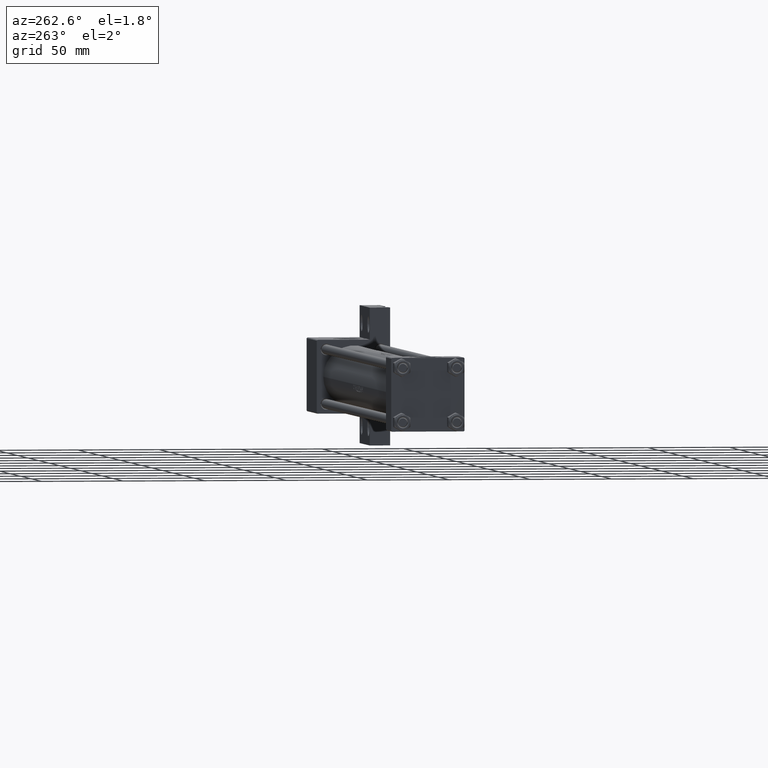
[diagram: clean part render]
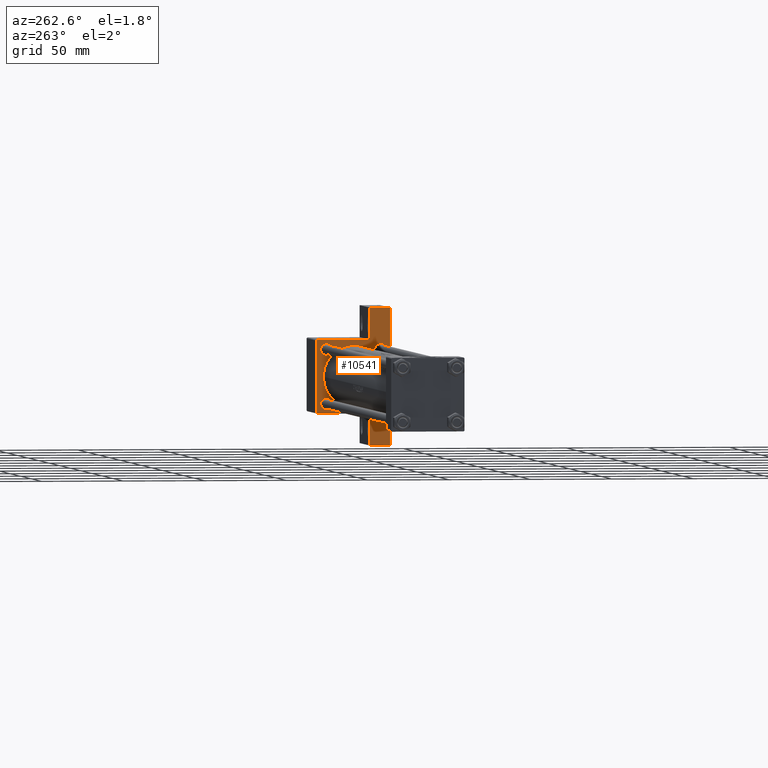
[diagram: same view with one face highlighted and labeled with its STEP entity id]
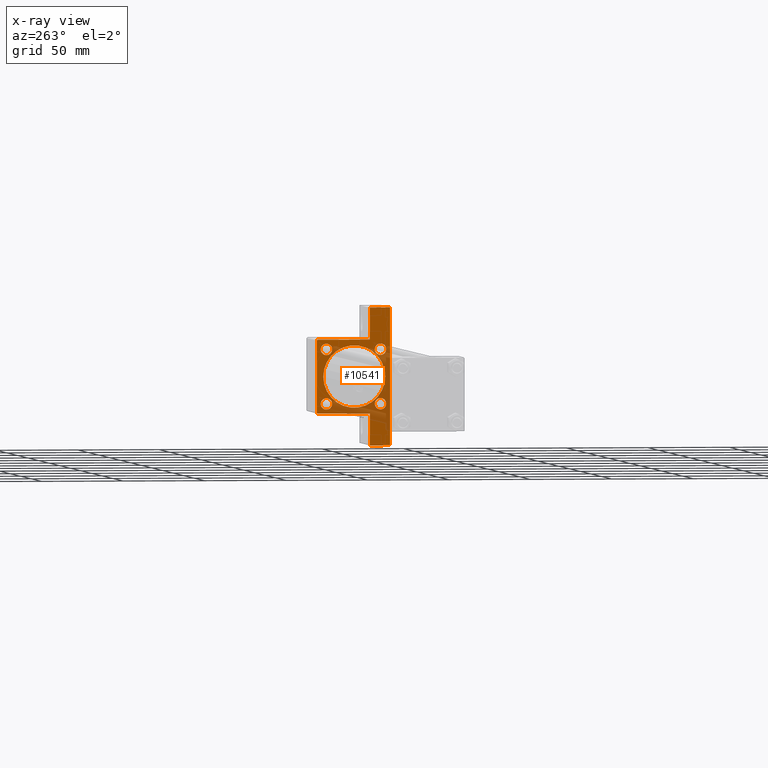
[diagram: x-ray of the same camera — body ghosted, the highlighted face saturated]
A machine part, auxiliary view. The second image highlights one B-rep face of the part: STEP entity #10541.
The next image is the same camera in x-ray: the body ghosted, the highlighted face saturated — about 34% of this face is hidden behind the body in this view.
In plain terms, the highlighted planar face has unit normal (-1, 0, -0).
Its self-contained STEP definition (entity closure, byte-faithful):
#52 = VECTOR ( 'NONE', #21753, 1000.000000000000114 ) ;
#529 = CARTESIAN_POINT ( 'NONE',  ( 352.0000000000000568, -16.59999999999999076, -13.10000000000000142 ) ) ;
#650 = VECTOR ( 'NONE', #27094, 1000.000000000000000 ) ;
#713 = ORIENTED_EDGE ( 'NONE', *, *, #4574, .T. ) ;
#736 = CARTESIAN_POINT ( 'NONE',  ( 352.0000000000000568, 22.25000000000000355, 22.25000000000000355 ) ) ;
#1144 = VERTEX_POINT ( 'NONE', #44604 ) ;
#1269 = VECTOR ( 'NONE', #33818, 1000.000000000000000 ) ;
#1322 = DIRECTION ( 'NONE',  ( 1.000000000000000000, -0.000000000000000000, 0.000000000000000000 ) ) ;
#1439 = CARTESIAN_POINT ( 'NONE',  ( 352.0000000000000568, -22.49999999999999645, 21.99999999999999289 ) ) ;
#1542 = VERTEX_POINT ( 'NONE', #40646 ) ;
#1722 = AXIS2_PLACEMENT_3D ( 'NONE', #39209, #36073, #6414 ) ;
#2104 = CIRCLE ( 'NONE', #3648, 3.500000000000006661 ) ;
#2435 = DIRECTION ( 'NONE',  ( 0.000000000000000000, 0.000000000000000000, 1.000000000000000000 ) ) ;
#2691 = ORIENTED_EDGE ( 'NONE', *, *, #3866, .F. ) ;
#2819 = VERTEX_POINT ( 'NONE', #18696 ) ;
#3225 = ORIENTED_EDGE ( 'NONE', *, *, #33678, .T. ) ;
#3331 = ORIENTED_EDGE ( 'NONE', *, *, #38251, .T. ) ;
#3568 = CARTESIAN_POINT ( 'NONE',  ( 352.0000000000000568, -16.59999999999999076, -20.10000000000001208 ) ) ;
#3648 = AXIS2_PLACEMENT_3D ( 'NONE', #25802, #35934, #21699 ) ;
#3866 = EDGE_CURVE ( 'NONE', #22689, #18515, #27614, .T. ) ;
#3880 = CARTESIAN_POINT ( 'NONE',  ( 352.0000000000000568, 22.00000000000000355, 22.50000000000000355 ) ) ;
#4118 = CARTESIAN_POINT ( 'NONE',  ( 352.0000000000000000, 41.99999999999996447, -9.999999999999998224 ) ) ;
#4145 = EDGE_CURVE ( 'NONE', #14422, #45941, #19114, .T. ) ;
#4574 = EDGE_CURVE ( 'NONE', #34561, #18515, #19535, .T. ) ;
#4592 = CARTESIAN_POINT ( 'NONE',  ( 352.0000000000000568, 16.59999999999999787, 20.10000000000000853 ) ) ;
#5051 = ORIENTED_EDGE ( 'NONE', *, *, #26895, .T. ) ;
#5656 = VERTEX_POINT ( 'NONE', #8568 ) ;
#6026 = CIRCLE ( 'NONE', #32976, 3.500000000000003109 ) ;
#6414 = DIRECTION ( 'NONE',  ( 0.000000000000000000, 0.000000000000000000, 1.000000000000000000 ) ) ;
#6638 = DIRECTION ( 'NONE',  ( -0.000000000000000000, 0.7071067811865474617, 0.7071067811865474617 ) ) ;
#6728 = EDGE_LOOP ( 'NONE', ( #34170, #3331 ) ) ;
#7158 = VECTOR ( 'NONE', #19613, 1000.000000000000000 ) ;
#7522 = CARTESIAN_POINT ( 'NONE',  ( 352.0000000000000000, 41.99999999999996447, -9.999999999999998224 ) ) ;
#7861 = ORIENTED_EDGE ( 'NONE', *, *, #8319, .T. ) ;
#8022 = CARTESIAN_POINT ( 'NONE',  ( 352.0000000000000568, 16.59999999999999787, -20.10000000000000853 ) ) ;
#8072 = DIRECTION ( 'NONE',  ( 0.000000000000000000, 0.000000000000000000, 1.000000000000000000 ) ) ;
#8319 = EDGE_CURVE ( 'NONE', #30605, #1542, #6026, .T. ) ;
#8568 = CARTESIAN_POINT ( 'NONE',  ( 352.0000000000000568, 2.388061258337338150E-15, -19.49999999999999645 ) ) ;
#9242 = CIRCLE ( 'NONE', #10782, 3.500000000000006661 ) ;
#9335 = DIRECTION ( 'NONE',  ( 0.000000000000000000, 0.000000000000000000, 1.000000000000000000 ) ) ;
#9445 = VERTEX_POINT ( 'NONE', #8022 ) ;
#9554 = CARTESIAN_POINT ( 'NONE',  ( 352.0000000000000568, -22.24999999999999289, 22.24999999999999289 ) ) ;
#9778 = VECTOR ( 'NONE', #30386, 1000.000000000000000 ) ;
#9946 = DIRECTION ( 'NONE',  ( 1.000000000000000000, -0.000000000000000000, 0.000000000000000000 ) ) ;
#10076 = CIRCLE ( 'NONE', #43178, 3.500000000000006661 ) ;
#10343 = ORIENTED_EDGE ( 'NONE', *, *, #4145, .F. ) ;
#10446 = LINE ( 'NONE', #7522, #32644 ) ;
#10541 = ADVANCED_FACE ( 'NONE', ( #40376, #25673, #28826, #29051, #29759, #32427 ), #47603, .T. ) ;
#10782 = AXIS2_PLACEMENT_3D ( 'NONE', #27813, #13789, #27578 ) ;
#11389 = DIRECTION ( 'NONE',  ( 0.000000000000000000, 0.000000000000000000, -1.000000000000000000 ) ) ;
#11787 = EDGE_CURVE ( 'NONE', #33834, #1144, #36933, .T. ) ;
#12427 = EDGE_LOOP ( 'NONE', ( #22973, #35164 ) ) ;
#12504 = VERTEX_POINT ( 'NONE', #27304 ) ;
#12715 = DIRECTION ( 'NONE',  ( 1.000000000000000000, -0.000000000000000000, 0.000000000000000000 ) ) ;
#12964 = VERTEX_POINT ( 'NONE', #16120 ) ;
#13292 = CARTESIAN_POINT ( 'NONE',  ( 352.0000000000000568, -16.59999999999999076, 13.10000000000000142 ) ) ;
#13560 = CARTESIAN_POINT ( 'NONE',  ( 352.0000000000000568, -16.59999999999999076, -16.60000000000000853 ) ) ;
#13789 = DIRECTION ( 'NONE',  ( 1.000000000000000000, -0.000000000000000000, 0.000000000000000000 ) ) ;
#14422 = VERTEX_POINT ( 'NONE', #1439 ) ;
#14694 = AXIS2_PLACEMENT_3D ( 'NONE', #14899, #1322, #26016 ) ;
#14851 = EDGE_CURVE ( 'NONE', #20868, #39527, #10076, .T. ) ;
#14866 = EDGE_CURVE ( 'NONE', #5656, #12964, #23967, .T. ) ;
#14899 = CARTESIAN_POINT ( 'NONE',  ( 352.0000000000000568, 16.59999999999999787, -16.60000000000000497 ) ) ;
#15030 = ORIENTED_EDGE ( 'NONE', *, *, #15851, .T. ) ;
#15037 = DIRECTION ( 'NONE',  ( 0.000000000000000000, 0.000000000000000000, -1.000000000000000000 ) ) ;
#15473 = CARTESIAN_POINT ( 'NONE',  ( 352.0000000000000568, -22.49999999999999645, 22.49999999999999289 ) ) ;
#15851 = EDGE_CURVE ( 'NONE', #12504, #9445, #45529, .T. ) ;
#16120 = CARTESIAN_POINT ( 'NONE',  ( 352.0000000000000568, 6.123233995736727825E-17, 18.50000000000000355 ) ) ;
#16189 = AXIS2_PLACEMENT_3D ( 'NONE', #29282, #18427, #25911 ) ;
#16423 = VECTOR ( 'NONE', #29625, 1000.000000000000000 ) ;
#16450 = LINE ( 'NONE', #31177, #7158 ) ;
#17526 = EDGE_LOOP ( 'NONE', ( #17641, #7861 ) ) ;
#17641 = ORIENTED_EDGE ( 'NONE', *, *, #19499, .T. ) ;
#18209 = VECTOR ( 'NONE', #38445, 1000.000000000000000 ) ;
#18427 = DIRECTION ( 'NONE',  ( -1.000000000000000000, 0.000000000000000000, -0.000000000000000000 ) ) ;
#18515 = VERTEX_POINT ( 'NONE', #26234 ) ;
#18523 = LINE ( 'NONE', #33240, #16423 ) ;
#18675 = DIRECTION ( 'NONE',  ( 1.000000000000000000, 0.000000000000000000, 0.000000000000000000 ) ) ;
#18696 = CARTESIAN_POINT ( 'NONE',  ( 352.0000000000000568, -21.99999999999998224, 22.49999999999999289 ) ) ;
#18921 = ORIENTED_EDGE ( 'NONE', *, *, #14866, .T. ) ;
#19058 = AXIS2_PLACEMENT_3D ( 'NONE', #40139, #18675, #15037 ) ;
#19114 = LINE ( 'NONE', #15473, #1269 ) ;
#19183 = VERTEX_POINT ( 'NONE', #43355 ) ;
#19499 = EDGE_CURVE ( 'NONE', #1542, #30605, #27173, .T. ) ;
#19535 = LINE ( 'NONE', #30852, #9778 ) ;
#19613 = DIRECTION ( 'NONE',  ( 0.000000000000000000, 0.000000000000000000, -1.000000000000000000 ) ) ;
#19655 = CARTESIAN_POINT ( 'NONE',  ( 352.0000000000000568, -42.00000000000003553, -9.999999999999998224 ) ) ;
#20868 = VERTEX_POINT ( 'NONE', #529 ) ;
#21699 = DIRECTION ( 'NONE',  ( 0.000000000000000000, 0.000000000000000000, 1.000000000000000000 ) ) ;
#21723 = VECTOR ( 'NONE', #6638, 1000.000000000000114 ) ;
#21753 = DIRECTION ( 'NONE',  ( 0.000000000000000000, 0.7071067811865474617, -0.7071067811865474617 ) ) ;
#21756 = DIRECTION ( 'NONE',  ( 0.000000000000000000, 0.000000000000000000, -1.000000000000000000 ) ) ;
#22274 = EDGE_LOOP ( 'NONE', ( #33614, #36227, #29146, #30333, #31006, #713, #2691, #36217, #10343, #5051 ) ) ;
#22689 = VERTEX_POINT ( 'NONE', #23242 ) ;
#22711 = DIRECTION ( 'NONE',  ( -2.846725704167072533E-15, 1.000000000000000000, -0.000000000000000000 ) ) ;
#22973 = ORIENTED_EDGE ( 'NONE', *, *, #14851, .T. ) ;
#23242 = CARTESIAN_POINT ( 'NONE',  ( 352.0000000000000568, -42.00000000000003553, -9.999999999999998224 ) ) ;
#23718 = VERTEX_POINT ( 'NONE', #3880 ) ;
#23967 = CIRCLE ( 'NONE', #25471, 19.00000000000000000 ) ;
#24433 = EDGE_CURVE ( 'NONE', #1144, #34561, #10446, .T. ) ;
#25385 = DIRECTION ( 'NONE',  ( 1.000000000000000000, 0.000000000000000000, 0.000000000000000000 ) ) ;
#25410 = EDGE_CURVE ( 'NONE', #42984, #19183, #33266, .T. ) ;
#25471 = AXIS2_PLACEMENT_3D ( 'NONE', #42982, #25385, #21756 ) ;
#25673 = FACE_BOUND ( 'NONE', #6728, .T. ) ;
#25802 = CARTESIAN_POINT ( 'NONE',  ( 352.0000000000000568, 16.59999999999999787, -16.60000000000000497 ) ) ;
#25911 = DIRECTION ( 'NONE',  ( -0.000000000000000000, 0.000000000000000000, 1.000000000000000000 ) ) ;
#26016 = DIRECTION ( 'NONE',  ( 0.000000000000000000, 0.000000000000000000, 1.000000000000000000 ) ) ;
#26019 = CIRCLE ( 'NONE', #19058, 19.00000000000000000 ) ;
#26095 = LINE ( 'NONE', #736, #52 ) ;
#26172 = EDGE_CURVE ( 'NONE', #45502, #33834, #16450, .T. ) ;
#26234 = CARTESIAN_POINT ( 'NONE',  ( 352.0000000000000568, -42.00000000000003553, -22.50000000000000000 ) ) ;
#26895 = EDGE_CURVE ( 'NONE', #14422, #2819, #42600, .T. ) ;
#27094 = DIRECTION ( 'NONE',  ( 0.000000000000000000, -1.000000000000000000, -2.312964634635742957E-16 ) ) ;
#27173 = CIRCLE ( 'NONE', #1722, 3.500000000000003109 ) ;
#27304 = CARTESIAN_POINT ( 'NONE',  ( 352.0000000000000568, 16.59999999999999787, -13.09999999999999787 ) ) ;
#27578 = DIRECTION ( 'NONE',  ( 0.000000000000000000, 0.000000000000000000, 1.000000000000000000 ) ) ;
#27614 = LINE ( 'NONE', #19655, #18209 ) ;
#27813 = CARTESIAN_POINT ( 'NONE',  ( 352.0000000000000568, -16.59999999999999076, -16.60000000000000853 ) ) ;
#27842 = CARTESIAN_POINT ( 'NONE',  ( 352.0000000000000568, -22.50000000000000000, -9.999999999999998224 ) ) ;
#28622 = EDGE_CURVE ( 'NONE', #22689, #45941, #18523, .T. ) ;
#28826 = FACE_BOUND ( 'NONE', #39672, .T. ) ;
#29051 = FACE_BOUND ( 'NONE', #12427, .T. ) ;
#29146 = ORIENTED_EDGE ( 'NONE', *, *, #26172, .T. ) ;
#29282 = CARTESIAN_POINT ( 'NONE',  ( 352.0000000000000568, 0.000000000000000000, 0.000000000000000000 ) ) ;
#29625 = DIRECTION ( 'NONE',  ( 0.000000000000000000, 1.000000000000000000, 0.000000000000000000 ) ) ;
#29759 = FACE_BOUND ( 'NONE', #47430, .T. ) ;
#30333 = ORIENTED_EDGE ( 'NONE', *, *, #11787, .T. ) ;
#30386 = DIRECTION ( 'NONE',  ( 0.000000000000000000, -1.000000000000000000, -7.709882115452476934E-17 ) ) ;
#30605 = VERTEX_POINT ( 'NONE', #13292 ) ;
#30852 = CARTESIAN_POINT ( 'NONE',  ( 352.0000000000000568, 22.50000000000000355, -22.49999999999999645 ) ) ;
#31006 = ORIENTED_EDGE ( 'NONE', *, *, #24433, .T. ) ;
#31166 = DIRECTION ( 'NONE',  ( 1.000000000000000000, -0.000000000000000000, 0.000000000000000000 ) ) ;
#31177 = CARTESIAN_POINT ( 'NONE',  ( 352.0000000000000568, 22.50000000000000355, 22.50000000000000355 ) ) ;
#32203 = CIRCLE ( 'NONE', #39149, 3.499999999999999556 ) ;
#32427 = FACE_OUTER_BOUND ( 'NONE', #22274, .T. ) ;
#32644 = VECTOR ( 'NONE', #11389, 1000.000000000000000 ) ;
#32976 = AXIS2_PLACEMENT_3D ( 'NONE', #44259, #37028, #8072 ) ;
#33097 = EDGE_CURVE ( 'NONE', #12964, #5656, #26019, .T. ) ;
#33240 = CARTESIAN_POINT ( 'NONE',  ( 352.0000000000000568, -42.00000000000003553, -9.999999999999998224 ) ) ;
#33266 = CIRCLE ( 'NONE', #44788, 3.499999999999999556 ) ;
#33614 = ORIENTED_EDGE ( 'NONE', *, *, #36463, .F. ) ;
#33678 = EDGE_CURVE ( 'NONE', #9445, #12504, #2104, .T. ) ;
#33818 = DIRECTION ( 'NONE',  ( 0.000000000000000000, 0.000000000000000000, -1.000000000000000000 ) ) ;
#33834 = VERTEX_POINT ( 'NONE', #45541 ) ;
#34050 = CARTESIAN_POINT ( 'NONE',  ( 352.0000000000000568, 22.50000000000000355, 22.00000000000000355 ) ) ;
#34170 = ORIENTED_EDGE ( 'NONE', *, *, #25410, .T. ) ;
#34561 = VERTEX_POINT ( 'NONE', #38080 ) ;
#35164 = ORIENTED_EDGE ( 'NONE', *, *, #42766, .T. ) ;
#35381 = CARTESIAN_POINT ( 'NONE',  ( 352.0000000000000568, 16.59999999999999787, 16.60000000000000497 ) ) ;
#35934 = DIRECTION ( 'NONE',  ( 1.000000000000000000, -0.000000000000000000, 0.000000000000000000 ) ) ;
#36073 = DIRECTION ( 'NONE',  ( 1.000000000000000000, -0.000000000000000000, 0.000000000000000000 ) ) ;
#36217 = ORIENTED_EDGE ( 'NONE', *, *, #28622, .T. ) ;
#36227 = ORIENTED_EDGE ( 'NONE', *, *, #44527, .T. ) ;
#36463 = EDGE_CURVE ( 'NONE', #23718, #2819, #44925, .T. ) ;
#36933 = LINE ( 'NONE', #4118, #45380 ) ;
#37028 = DIRECTION ( 'NONE',  ( 1.000000000000000000, -0.000000000000000000, 0.000000000000000000 ) ) ;
#38080 = CARTESIAN_POINT ( 'NONE',  ( 352.0000000000000000, 41.99999999999996447, -22.50000000000000000 ) ) ;
#38251 = EDGE_CURVE ( 'NONE', #19183, #42984, #32203, .T. ) ;
#38445 = DIRECTION ( 'NONE',  ( 0.000000000000000000, 0.000000000000000000, -1.000000000000000000 ) ) ;
#39130 = DIRECTION ( 'NONE',  ( 0.000000000000000000, 0.000000000000000000, 1.000000000000000000 ) ) ;
#39149 = AXIS2_PLACEMENT_3D ( 'NONE', #35381, #12715, #9335 ) ;
#39209 = CARTESIAN_POINT ( 'NONE',  ( 352.0000000000000568, -16.59999999999999076, 16.60000000000000853 ) ) ;
#39527 = VERTEX_POINT ( 'NONE', #3568 ) ;
#39672 = EDGE_LOOP ( 'NONE', ( #15030, #3225 ) ) ;
#40139 = CARTESIAN_POINT ( 'NONE',  ( 352.0000000000000568, 6.123233995736727825E-17, -0.4999999999999970024 ) ) ;
#40376 = FACE_BOUND ( 'NONE', #17526, .T. ) ;
#40646 = CARTESIAN_POINT ( 'NONE',  ( 352.0000000000000568, -16.59999999999999076, 20.10000000000001208 ) ) ;
#41544 = CARTESIAN_POINT ( 'NONE',  ( 352.0000000000000568, 22.50000000000000355, 22.50000000000000355 ) ) ;
#42600 = LINE ( 'NONE', #9554, #21723 ) ;
#42766 = EDGE_CURVE ( 'NONE', #39527, #20868, #9242, .T. ) ;
#42982 = CARTESIAN_POINT ( 'NONE',  ( 352.0000000000000568, 6.123233995736727825E-17, -0.4999999999999970024 ) ) ;
#42984 = VERTEX_POINT ( 'NONE', #4592 ) ;
#43178 = AXIS2_PLACEMENT_3D ( 'NONE', #13560, #9946, #39130 ) ;
#43355 = CARTESIAN_POINT ( 'NONE',  ( 352.0000000000000568, 16.59999999999999787, 13.10000000000000142 ) ) ;
#44259 = CARTESIAN_POINT ( 'NONE',  ( 352.0000000000000568, -16.59999999999999076, 16.60000000000000853 ) ) ;
#44527 = EDGE_CURVE ( 'NONE', #23718, #45502, #26095, .T. ) ;
#44604 = CARTESIAN_POINT ( 'NONE',  ( 352.0000000000000000, 41.99999999999996447, -9.999999999999998224 ) ) ;
#44788 = AXIS2_PLACEMENT_3D ( 'NONE', #46095, #31166, #2435 ) ;
#44925 = LINE ( 'NONE', #41544, #650 ) ;
#45380 = VECTOR ( 'NONE', #22711, 1000.000000000000000 ) ;
#45502 = VERTEX_POINT ( 'NONE', #34050 ) ;
#45529 = CIRCLE ( 'NONE', #14694, 3.500000000000006661 ) ;
#45541 = CARTESIAN_POINT ( 'NONE',  ( 352.0000000000000568, 22.50000000000000355, -9.999999999999984013 ) ) ;
#45941 = VERTEX_POINT ( 'NONE', #27842 ) ;
#46095 = CARTESIAN_POINT ( 'NONE',  ( 352.0000000000000568, 16.59999999999999787, 16.60000000000000497 ) ) ;
#47196 = ORIENTED_EDGE ( 'NONE', *, *, #33097, .T. ) ;
#47430 = EDGE_LOOP ( 'NONE', ( #47196, #18921 ) ) ;
#47603 = PLANE ( 'NONE',  #16189 ) ;